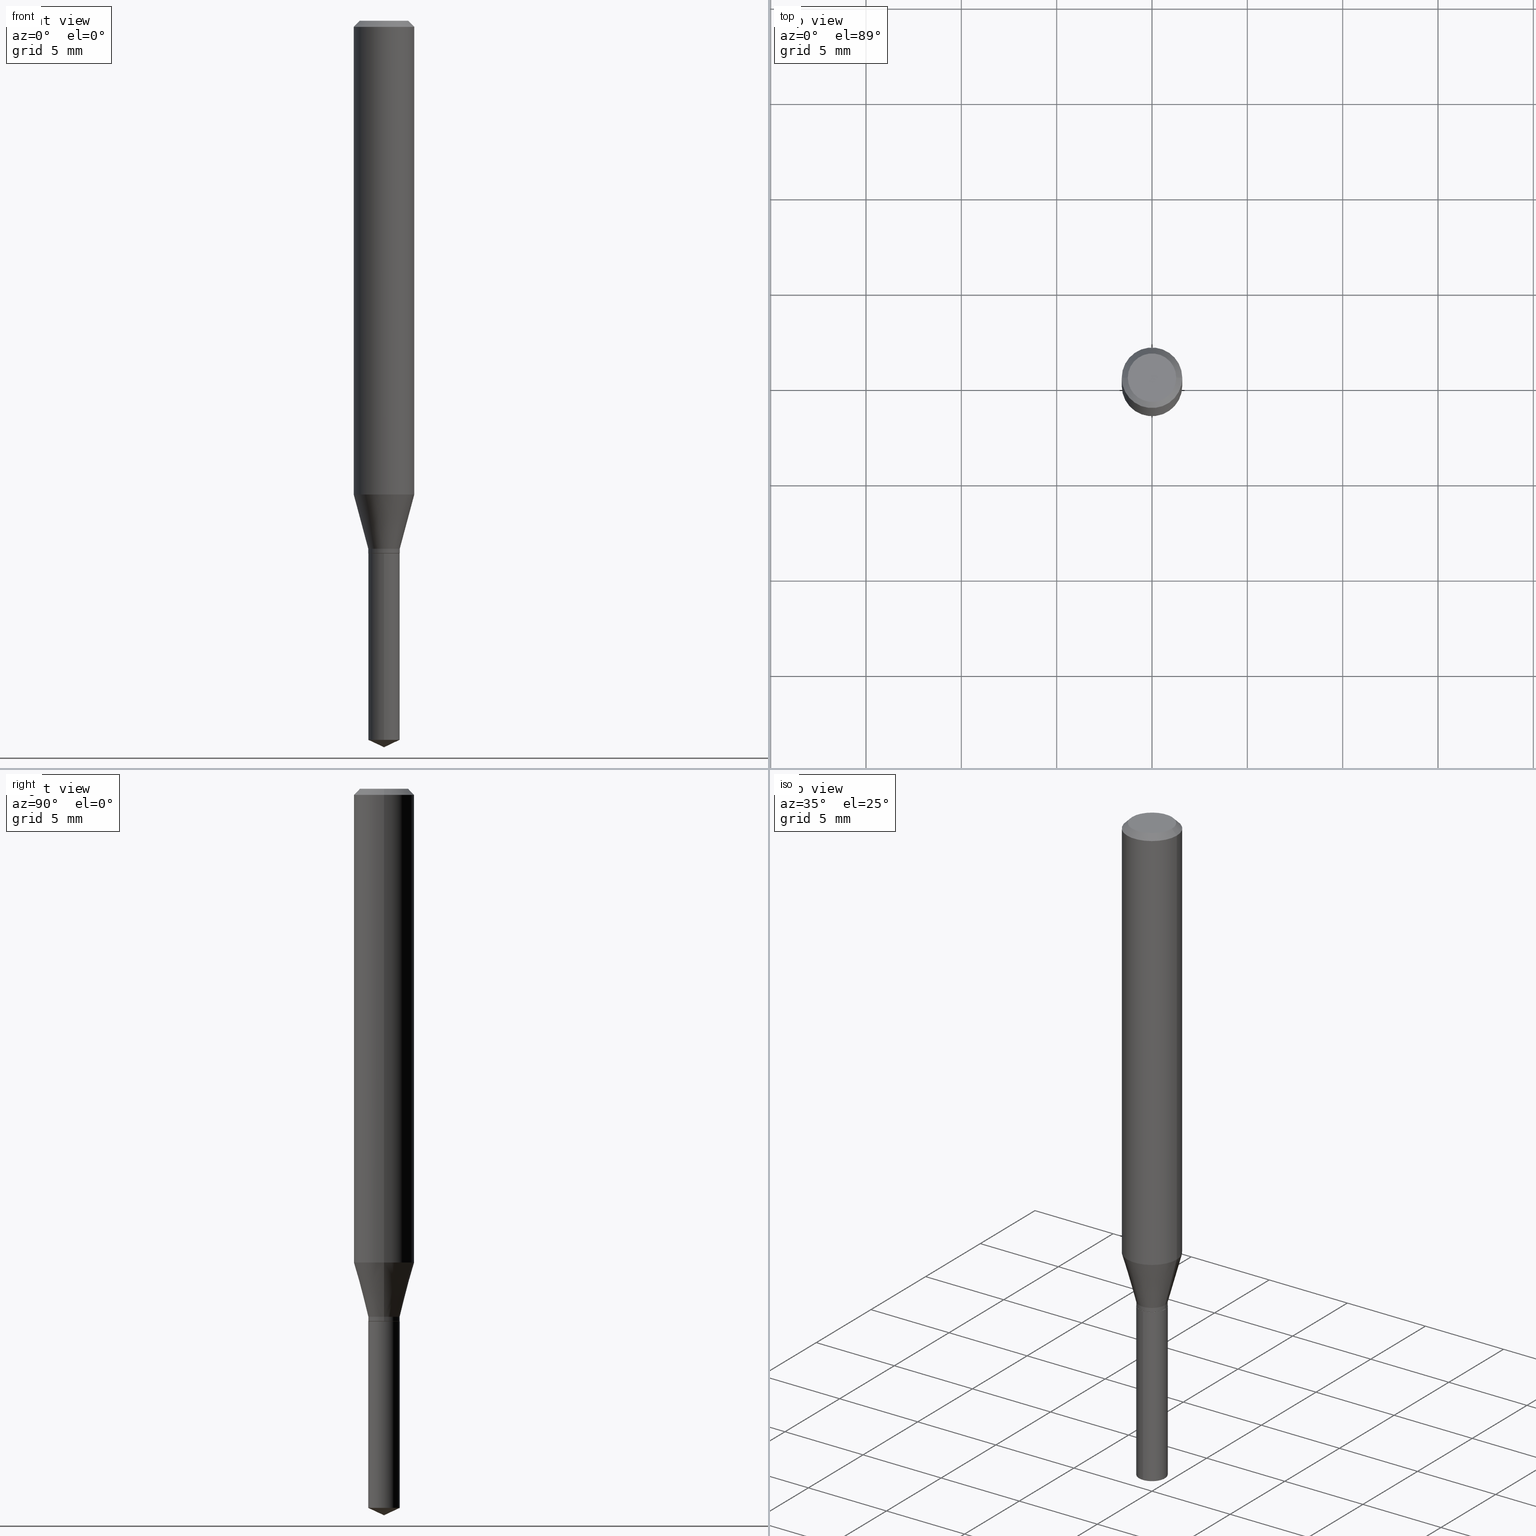
[diagram: canonical four-view strip — front | top / right | iso, engineering-drawing reading convention]
A machine part, canonical four-view strip (front | top / right | iso — engineering-drawing reading convention). The complete STEP part file that produces these views, byte-faithful:
ISO-10303-21;
HEADER;
FILE_DESCRIPTION (( 'STEP AP203' ),
    '1' );
FILE_NAME ('07176.STEP',
    '2024-04-23T19:53:37',
    ( '' ),
    ( '' ),
    'SwSTEP 2.0',
    'SolidWorks 2023',
    '' );
FILE_SCHEMA (( 'CONFIG_CONTROL_DESIGN' ));
ENDSEC;

DATA;
#1 = DIRECTION ( 'NONE',  ( -2.445399690415121530E-29, 3.491580316559632610E-15, 1.000000000000000000 ) ) ;
#2 = CARTESIAN_POINT ( 'NONE',  ( 0.03250000000000000111, -4.033359242631601195E-15, -1.090200000000000058 ) ) ;
#3 = CARTESIAN_POINT ( 'NONE',  ( 2.690015686803650369E-29, -3.840629472727460101E-15, -1.100000000000000089 ) ) ;
#4 =( NAMED_UNIT ( * ) SI_UNIT ( $, .STERADIAN. ) SOLID_ANGLE_UNIT ( ) );
#5 = DIRECTION ( 'NONE',  ( 1.000000000000000000, -6.982962677686273021E-15, 0.000000000000000000 ) ) ;
#6 = CIRCLE ( 'NONE', #360, 0.03250000000000000111 ) ;
#7 = DIRECTION ( 'NONE',  ( 6.982962677686265922E-15, 1.000000000000000000, -3.491580316559632610E-15 ) ) ;
#8 = AXIS2_PLACEMENT_3D ( 'NONE', #13, #122, #273 ) ;
#9 = CIRCLE ( 'NONE', #29, 0.03250000000000000111 ) ;
#10 = CYLINDRICAL_SURFACE ( 'NONE', #246, 0.03250000000000000111 ) ;
#11 = CARTESIAN_POINT ( 'NONE',  ( 3.893286209682126177E-47, -5.558580879666067980E-33, -1.592040838891559689E-18 ) ) ;
#12 = EDGE_CURVE ( 'NONE', #337, #411, #441, .T. ) ;
#13 = CARTESIAN_POINT ( 'NONE',  ( 2.666050092503035832E-29, -3.806412955606797054E-15, -1.090200000000000058 ) ) ;
#14 = CARTESIAN_POINT ( 'NONE',  ( 2.666050092503035832E-29, -3.806412955606797054E-15, -1.090200000000000058 ) ) ;
#15 = MANIFOLD_SOLID_BREP ( 'Body-Move/Copy2[2]', #366 ) ;
#16 = FACE_OUTER_BOUND ( 'NONE', #110, .T. ) ;
#17 = DIRECTION ( 'NONE',  ( -2.445468806185136597E-29, 3.491481338843145583E-15, 1.000000000000000000 ) ) ;
#18 = LOCAL_TIME ( 15, 53, 37.00000000000000000, #465 ) ;
#19 = ADVANCED_FACE ( 'NONE', ( #16 ), #81, .F. ) ;
#20 = DIRECTION ( 'NONE',  ( 1.000000000000000000, -6.982962677686273810E-15, 0.000000000000000000 ) ) ;
#21 = CYLINDRICAL_SURFACE ( 'NONE', #172, 0.03250000000000000111 ) ;
#22 = EDGE_CURVE ( 'NONE', #411, #341, #384, .T. ) ;
#23 = MANIFOLD_SOLID_BREP ( 'Body-Move/Copy2[1]', #452 ) ;
#24 = VECTOR ( 'NONE', #473, 39.37007874015748143 ) ;
#25 = ORIENTED_EDGE ( 'NONE', *, *, #289, .F. ) ;
#26 = EDGE_CURVE ( 'NONE', #368, #252, #425, .T. ) ;
#27 = ORIENTED_EDGE ( 'NONE', *, *, #415, .F. ) ;
#28 = ORIENTED_EDGE ( 'NONE', *, *, #262, .F. ) ;
#29 = AXIS2_PLACEMENT_3D ( 'NONE', #334, #486, #339 ) ;
#30 = DIRECTION ( 'NONE',  ( -2.445468806185136597E-29, 3.491481338843145583E-15, 1.000000000000000000 ) ) ;
#31 = ORIENTED_EDGE ( 'NONE', *, *, #326, .T. ) ;
#32 = ORIENTED_EDGE ( 'NONE', *, *, #55, .T. ) ;
#33 = DIRECTION ( 'NONE',  ( -2.445399690415121810E-29, 3.491580316559632610E-15, 1.000000000000000000 ) ) ;
#34 = EDGE_LOOP ( 'NONE', ( #444, #174, #193, #485 ) ) ;
#35 = CARTESIAN_POINT ( 'NONE',  ( 2.392251677512803216E-29, -3.415501383099560055E-15, -0.9782384757729334357 ) ) ;
#36 = EDGE_CURVE ( 'NONE', #148, #275, #131, .T. ) ;
#37 = APPROVAL_ROLE ( '' ) ;
#38 = ORIENTED_EDGE ( 'NONE', *, *, #283, .T. ) ;
#39 = CARTESIAN_POINT ( 'NONE',  ( 0.06250000000000012490, -3.851936550454952513E-15, -0.9782384757729334357 ) ) ;
#40 = FACE_OUTER_BOUND ( 'NONE', #293, .T. ) ;
#41 = FACE_OUTER_BOUND ( 'NONE', #214, .T. ) ;
#42 = COORDINATED_UNIVERSAL_TIME_OFFSET ( 5, 0, .BEHIND. ) ;
#43 = CARTESIAN_POINT ( 'NONE',  ( 0.04999999999999999584, -4.077247707424184705E-16, -1.592040838888913461E-18 ) ) ;
#44 = DIRECTION ( 'NONE',  ( 1.000000000000000000, -6.982962677686273021E-15, 0.000000000000000000 ) ) ;
#45 = APPROVAL ( #475, 'UNSPECIFIED' ) ;
#46 = CARTESIAN_POINT ( 'NONE',  ( -9.260740279983036507E-28, 1.322265303911854087E-13, 37.87007874015748143 ) ) ;
#47 = AXIS2_PLACEMENT_3D ( 'NONE', #355, #321, #316 ) ;
#48 = CARTESIAN_POINT ( 'NONE',  ( -0.03250000000000000111, 2.309263891220325683E-16, -1.598653904332844407E-30 ) ) ;
#49 = COORDINATED_UNIVERSAL_TIME_OFFSET ( 5, 0, .BEHIND. ) ;
#50 = DIRECTION ( 'NONE',  ( -2.445399690415121530E-29, 3.491580316559632610E-15, 1.000000000000000000 ) ) ;
#51 = CARTESIAN_POINT ( 'NONE',  ( 0.03250000000000000111, -4.033359242631601195E-15, -1.090200000000000058 ) ) ;
#52 = DIRECTION ( 'NONE',  ( 6.439704144417049286E-15, 0.9063077870366550437, 0.4226182617406886721 ) ) ;
#53 = CARTESIAN_POINT ( 'NONE',  ( -0.03250000000000000111, -3.591721954710385060E-15, -1.099499999999999922 ) ) ;
#54 = PRODUCT_DEFINITION_SHAPE ( 'NONE', 'NONE',  #127 ) ;
#55 = EDGE_CURVE ( 'NONE', #337, #305, #428, .T. ) ;
#56 = CARTESIAN_POINT ( 'NONE',  ( 3.056836007731442729E-31, -4.364351673553962300E-17, -0.01250000000000008916 ) ) ;
#57 = CIRCLE ( 'NONE', #47, 0.03250000000000000111 ) ;
#58 = DIRECTION ( 'NONE',  ( 1.000000000000000000, -6.982962677686265922E-15, 4.876176775795935793E-29 ) ) ;
#59 = COORDINATED_UNIVERSAL_TIME_OFFSET ( 5, 0, .BEHIND. ) ;
#60 = CONICAL_SURFACE ( 'NONE', #367, 0.03199999999999999373, 0.7853981633974184140 ) ;
#61 = CARTESIAN_POINT ( 'NONE',  ( 0.000000000000000000, 0.000000000000000000, 0.000000000000000000 ) ) ;
#62 =( CONVERSION_BASED_UNIT ( 'INCH', #234 ) LENGTH_UNIT ( ) NAMED_UNIT ( #327 ) );
#63 = EDGE_LOOP ( 'NONE', ( #106, #27, #67, #294 ) ) ;
#64 = ADVANCED_FACE ( 'NONE', ( #40 ), #205, .T. ) ;
#65 = VERTEX_POINT ( 'NONE', #196 ) ;
#66 = VECTOR ( 'NONE', #474, 39.37007874015748854 ) ;
#67 = ORIENTED_EDGE ( 'NONE', *, *, #26, .T. ) ;
#68 = AXIS2_PLACEMENT_3D ( 'NONE', #383, #1, #123 ) ;
#69 = FACE_OUTER_BOUND ( 'NONE', #178, .T. ) ;
#70 = DATE_AND_TIME ( #349, #256 ) ;
#71 = EDGE_CURVE ( 'NONE', #346, #103, #159, .T. ) ;
#72 = ORIENTED_EDGE ( 'NONE', *, *, #406, .T. ) ;
#73 = CARTESIAN_POINT ( 'NONE',  ( 0.03250000000000000111, -4.065830019082841950E-15, -1.099499999999999922 ) ) ;
#74 = DATE_AND_TIME ( #418, #18 ) ;
#75 = ORIENTED_EDGE ( 'NONE', *, *, #12, .T. ) ;
#76 = DIRECTION ( 'NONE',  ( -2.445468806185136597E-29, 3.491481338843145583E-15, 1.000000000000000000 ) ) ;
#77 = MECHANICAL_CONTEXT ( 'NONE', #372, 'mechanical' ) ;
#78 = CC_DESIGN_APPROVAL ( #45, ( #472 ) ) ;
#79 = EDGE_LOOP ( 'NONE', ( #95, #38, #142, #436 ) ) ;
#80 = DIRECTION ( 'NONE',  ( -2.445468806185136597E-29, 3.491481338843145583E-15, 1.000000000000000000 ) ) ;
#81 = PLANE ( 'NONE',  #175 ) ;
#82 = CARTESIAN_POINT ( 'NONE',  ( 0.000000000000000000, 0.000000000000000000, 0.000000000000000000 ) ) ;
#83 = CC_DESIGN_DATE_AND_TIME_ASSIGNMENT ( #74, #114, ( #127 ) ) ;
#84 = PERSON_AND_ORGANIZATION_ROLE ( 'design_supplier' ) ;
#85 = DIRECTION ( 'NONE',  ( 1.000000000000000000, -6.982962677686273810E-15, 0.000000000000000000 ) ) ;
#86 =( LENGTH_UNIT ( ) NAMED_UNIT ( * ) SI_UNIT ( $, .METRE. ) );
#87 = DATE_TIME_ROLE ( 'classification_date' ) ;
#88 = DIRECTION ( 'NONE',  ( -2.445399690415121530E-29, 3.491580316559632610E-15, 1.000000000000000000 ) ) ;
#89 = CC_DESIGN_APPROVAL ( #218, ( #127 ) ) ;
#90 = DIRECTION ( 'NONE',  ( 1.000000000000000000, -6.982962677686266711E-15, 0.000000000000000000 ) ) ;
#91 = CONICAL_SURFACE ( 'NONE', #442, 0.03199999999999999373, 0.7853981633974184140 ) ;
#92 = CARTESIAN_POINT ( 'NONE',  ( 2.309263891220688559E-16, 0.03249999999999481776, -1.484845001109962981 ) ) ;
#93 = DIRECTION ( 'NONE',  ( 1.000000000000000000, -6.982962677686273810E-15, 0.000000000000000000 ) ) ;
#94 = EDGE_CURVE ( 'NONE', #411, #337, #489, .T. ) ;
#95 = ORIENTED_EDGE ( 'NONE', *, *, #326, .F. ) ;
#96 = DIRECTION ( 'NONE',  ( -6.982962677686265922E-15, -1.000000000000000000, 4.202843067175789324E-15 ) ) ;
#97 = CONICAL_SURFACE ( 'NONE', #397, 0.03250000000000000111, 0.2617993877991499074 ) ;
#98 = CC_DESIGN_DATE_AND_TIME_ASSIGNMENT ( #387, #87, ( #472 ) ) ;
#99 = EDGE_CURVE ( 'NONE', #333, #302, #434, .T. ) ;
#100 = VERTEX_POINT ( 'NONE', #2 ) ;
#101 = ORIENTED_EDGE ( 'NONE', *, *, #71, .T. ) ;
#102 = ORIENTED_EDGE ( 'NONE', *, *, #36, .F. ) ;
#103 = VERTEX_POINT ( 'NONE', #92 ) ;
#104 = AXIS2_PLACEMENT_3D ( 'NONE', #435, #323, #90 ) ;
#105 = EDGE_CURVE ( 'NONE', #100, #483, #217, .T. ) ;
#106 = ORIENTED_EDGE ( 'NONE', *, *, #362, .F. ) ;
#107 = CONICAL_SURFACE ( 'NONE', #288, 0.06250000000000000000, 0.7853981633974449483 ) ;
#108 = FACE_OUTER_BOUND ( 'NONE', #222, .T. ) ;
#109 = APPLICATION_PROTOCOL_DEFINITION ( 'international standard', 'config_control_design', 1994, #319 ) ;
#110 = EDGE_LOOP ( 'NONE', ( #482, #445 ) ) ;
#111 = DIRECTION ( 'NONE',  ( -2.445468806185136877E-29, 3.491481338843145188E-15, 1.000000000000000000 ) ) ;
#112 = ORIENTED_EDGE ( 'NONE', *, *, #71, .F. ) ;
#113 = CARTESIAN_POINT ( 'NONE',  ( 2.690015686803650369E-29, -3.840629472727460101E-15, -1.100000000000000089 ) ) ;
#114 = DATE_TIME_ROLE ( 'creation_date' ) ;
#115 = AXIS2_PLACEMENT_3D ( 'NONE', #242, #202, #169 ) ;
#116 = DESIGN_CONTEXT ( 'detailed design', #319, 'design' ) ;
#117 = CARTESIAN_POINT ( 'NONE',  ( 2.690015686803650369E-29, -3.840629472727460101E-15, -1.100000000000000089 ) ) ;
#118 = DIRECTION ( 'NONE',  ( -0.2588190451025211836, 5.211531920934547886E-15, 0.9659258262890679791 ) ) ;
#119 = CIRCLE ( 'NONE', #478, 0.06250000000000012490 ) ;
#120 = EDGE_CURVE ( 'NONE', #416, #275, #405, .T. ) ;
#121 =( NAMED_UNIT ( * ) PLANE_ANGLE_UNIT ( ) SI_UNIT ( $, .RADIAN. ) );
#122 = DIRECTION ( 'NONE',  ( -2.445468806185136597E-29, 3.491481338843145583E-15, 1.000000000000000000 ) ) ;
#123 = DIRECTION ( 'NONE',  ( -6.982962677686265922E-15, -1.000000000000000000, 0.000000000000000000 ) ) ;
#124 = CALENDAR_DATE ( 2024, 23, 4 ) ;
#125 = CARTESIAN_POINT ( 'NONE',  ( 0.000000000000000000, 0.000000000000000000, 0.000000000000000000 ) ) ;
#126 = CARTESIAN_POINT ( 'NONE',  ( 0.06250000000000000000, -4.724246415962603826E-16, -0.01250000000000008916 ) ) ;
#127 = PRODUCT_DEFINITION ( 'UNKNOWN', '', #215, #116 ) ;
#128 = DIRECTION ( 'NONE',  ( 0.7071067811865263675, -2.468850131082035391E-15, 0.7071067811865686670 ) ) ;
#129 = DIRECTION ( 'NONE',  ( -2.445399690415121530E-29, 3.491580316559632610E-15, 1.000000000000000000 ) ) ;
#130 = PRODUCT ( '07176', '07176', '', ( #77 ) ) ;
#131 = LINE ( 'NONE', #431, #24 ) ;
#132 = FACE_OUTER_BOUND ( 'NONE', #144, .T. ) ;
#133 = DATE_AND_TIME ( #392, #404 ) ;
#134 = CARTESIAN_POINT ( 'NONE',  ( -0.03199999999999999373, -3.610606570110116639E-15, -1.100000000000000089 ) ) ;
#135 = CONICAL_SURFACE ( 'NONE', #115, 0.06250000000000000000, 0.7853981633974449483 ) ;
#136 = CC_DESIGN_PERSON_AND_ORGANIZATION_ASSIGNMENT ( #370, #353, ( #472 ) ) ;
#137 = AXIS2_PLACEMENT_3D ( 'NONE', #46, #88, #468 ) ;
#138 = CIRCLE ( 'NONE', #413, 0.04999999999999999584 ) ;
#139 = EDGE_CURVE ( 'NONE', #305, #100, #466, .T. ) ;
#140 = ORIENTED_EDGE ( 'NONE', *, *, #173, .T. ) ;
#141 = ORIENTED_EDGE ( 'NONE', *, *, #423, .T. ) ;
#142 = ORIENTED_EDGE ( 'NONE', *, *, #99, .T. ) ;
#143 = VERTEX_POINT ( 'NONE', #43 ) ;
#144 = EDGE_LOOP ( 'NONE', ( #419, #229, #25, #407 ) ) ;
#145 = CARTESIAN_POINT ( 'NONE',  ( 0.06250000000000000000, -4.800786840909313294E-16, -0.01250000000000008916 ) ) ;
#146 = ADVANCED_FACE ( 'NONE', ( #199 ), #399, .T. ) ;
#147 = VECTOR ( 'NONE', #358, 39.37007874015748143 ) ;
#148 = VERTEX_POINT ( 'NONE', #233 ) ;
#149 = AXIS2_PLACEMENT_3D ( 'NONE', #194, #80, #271 ) ;
#150 = LINE ( 'NONE', #303, #311 ) ;
#151 = ORIENTED_EDGE ( 'NONE', *, *, #226, .F. ) ;
#152 = CARTESIAN_POINT ( 'NONE',  ( -2.269462870247767285E-16, -0.03250000000000383832, -1.099999999999999867 ) ) ;
#153 = ADVANCED_FACE ( 'NONE', ( #351 ), #10, .T. ) ;
#154 = DIRECTION ( 'NONE',  ( -2.445468806185136597E-29, 3.491481338843145583E-15, 1.000000000000000000 ) ) ;
#155 = DIRECTION ( 'NONE',  ( -2.445468806185136597E-29, 3.491481338843145583E-15, 1.000000000000000000 ) ) ;
#156 = DIRECTION ( 'NONE',  ( -6.982962677686265922E-15, -1.000000000000000000, 4.202843067175789324E-15 ) ) ;
#157 = CIRCLE ( 'NONE', #287, 0.03250000000000000111 ) ;
#158 = DIRECTION ( 'NONE',  ( -1.000000000000000000, 6.982962677686266711E-15, 0.000000000000000000 ) ) ;
#159 = LINE ( 'NONE', #238, #412 ) ;
#160 = CYLINDRICAL_SURFACE ( 'NONE', #286, 0.06250000000000005551 ) ;
#161 = ADVANCED_FACE ( 'NONE', ( #322 ), #284, .F. ) ;
#162 = EDGE_LOOP ( 'NONE', ( #480, #212, #201, #102 ) ) ;
#163 = LINE ( 'NONE', #126, #147 ) ;
#164 = APPROVAL_DATE_TIME ( #133, #45 ) ;
#165 = CARTESIAN_POINT ( 'NONE',  ( -0.06250000000000000000, 3.927916506198520587E-16, -0.01250000000000008916 ) ) ;
#166 = DIRECTION ( 'NONE',  ( 1.000000000000000000, -6.982962677686267499E-15, 4.876176775795936353E-29 ) ) ;
#167 = DIRECTION ( 'NONE',  ( 1.000000000000000000, -6.982962677686265922E-15, 4.876176775795935232E-29 ) ) ;
#168 = PERSON_AND_ORGANIZATION ( #192, #297 ) ;
#169 = DIRECTION ( 'NONE',  ( -1.000000000000000000, 6.982962677686266711E-15, 0.000000000000000000 ) ) ;
#170 = FACE_OUTER_BOUND ( 'NONE', #79, .T. ) ;
#171 = CC_DESIGN_PERSON_AND_ORGANIZATION_ASSIGNMENT ( #459, #185, ( #127 ) ) ;
#172 = AXIS2_PLACEMENT_3D ( 'NONE', #471, #129, #96 ) ;
#173 = EDGE_CURVE ( 'NONE', #275, #416, #157, .T. ) ;
#174 = ORIENTED_EDGE ( 'NONE', *, *, #299, .T. ) ;
#175 = AXIS2_PLACEMENT_3D ( 'NONE', #320, #470, #393 ) ;
#176 = AXIS2_PLACEMENT_3D ( 'NONE', #35, #488, #181 ) ;
#177 = ORIENTED_EDGE ( 'NONE', *, *, #139, .T. ) ;
#178 = EDGE_LOOP ( 'NONE', ( #490, #291, #270, #487 ) ) ;
#179 = ORIENTED_EDGE ( 'NONE', *, *, #292, .F. ) ;
#180 = ADVANCED_FACE ( 'NONE', ( #264 ), #344, .T. ) ;
#181 = DIRECTION ( 'NONE',  ( 1.000000000000000000, -6.982962677686264344E-15, 0.000000000000000000 ) ) ;
#182 = COORDINATED_UNIVERSAL_TIME_OFFSET ( 5, 0, .BEHIND. ) ;
#183 = ORIENTED_EDGE ( 'NONE', *, *, #283, .F. ) ;
#184 = DIRECTION ( 'NONE',  ( -6.328713451373394622E-15, -0.9063077870366521571, 0.4226182617406949449 ) ) ;
#185 = PERSON_AND_ORGANIZATION_ROLE ( 'creator' ) ;
#186 = ORIENTED_EDGE ( 'NONE', *, *, #479, .F. ) ;
#187 = LINE ( 'NONE', #48, #251 ) ;
#188 = ADVANCED_FACE ( 'NONE', ( #313 ), #91, .T. ) ;
#189 = PERSON_AND_ORGANIZATION ( #192, #297 ) ;
#190 = DIRECTION ( 'NONE',  ( 1.000000000000000000, -6.982962677686273021E-15, 0.000000000000000000 ) ) ;
#191 = CARTESIAN_POINT ( 'NONE',  ( 3.668099535622682155E-29, -5.237370474839448718E-15, -1.500000000000000222 ) ) ;
#192 = PERSON ( 'UNSPECIFIED', 'UNSPECIFIED', 'UNSPECIFIED', ('UNSPECIFIED'), ('UNSPECIFIED'), ('UNSPECIFIED') ) ;
#193 = ORIENTED_EDGE ( 'NONE', *, *, #36, .T. ) ;
#194 = CARTESIAN_POINT ( 'NONE',  ( 2.688792952400557567E-29, -3.838883732058038598E-15, -1.099499999999999922 ) ) ;
#195 = AXIS2_PLACEMENT_3D ( 'NONE', #357, #17, #166 ) ;
#196 = CARTESIAN_POINT ( 'NONE',  ( -0.06250000000000012490, -2.971412173249496256E-15, -0.9782384757729334357 ) ) ;
#197 = FACE_OUTER_BOUND ( 'NONE', #162, .T. ) ;
#198 = ADVANCED_FACE ( 'NONE', ( #108 ), #300, .T. ) ;
#199 = FACE_OUTER_BOUND ( 'NONE', #371, .T. ) ;
#200 = CARTESIAN_POINT ( 'NONE',  ( 2.309263891220689052E-16, 0.03249999999999615696, -1.100000000000000089 ) ) ;
#201 = ORIENTED_EDGE ( 'NONE', *, *, #173, .F. ) ;
#202 = DIRECTION ( 'NONE',  ( 2.445468806185136597E-29, -3.491481338843145583E-15, -1.000000000000000000 ) ) ;
#203 = FACE_OUTER_BOUND ( 'NONE', #224, .T. ) ;
#204 = VECTOR ( 'NONE', #343, 39.37007874015748143 ) ;
#205 = CONICAL_SURFACE ( 'NONE', #137, 84.42940631927581308, 1.134464013796322668 ) ;
#206 = CARTESIAN_POINT ( 'NONE',  ( 2.690015686803650369E-29, -3.840629472727460101E-15, -1.100000000000000089 ) ) ;
#207 = EDGE_CURVE ( 'NONE', #483, #65, #422, .T. ) ;
#208 = DIRECTION ( 'NONE',  ( 1.000000000000000000, -6.982962677686265922E-15, 4.875957971899673662E-29 ) ) ;
#209 = CC_DESIGN_APPROVAL ( #484, ( #215 ) ) ;
#210 = CC_DESIGN_PERSON_AND_ORGANIZATION_ASSIGNMENT ( #189, #301, ( #130 ) ) ;
#211 = AXIS2_PLACEMENT_3D ( 'NONE', #312, #356, #5 ) ;
#212 = ORIENTED_EDGE ( 'NONE', *, *, #253, .T. ) ;
#213 = ORIENTED_EDGE ( 'NONE', *, *, #430, .T. ) ;
#214 = EDGE_LOOP ( 'NONE', ( #75, #365, #332, #410 ) ) ;
#215 = PRODUCT_DEFINITION_FORMATION_WITH_SPECIFIED_SOURCE ( 'ANY', '', #130, .NOT_KNOWN. ) ;
#216 = APPROVAL_PERSON_ORGANIZATION ( #261, #218, #37 ) ;
#217 = CIRCLE ( 'NONE', #279, 0.03250000000000000111 ) ;
#218 = APPROVAL ( #449, 'UNSPECIFIED' ) ;
#219 = ORIENTED_EDGE ( 'NONE', *, *, #335, .T. ) ;
#220 = CARTESIAN_POINT ( 'NONE',  ( 2.392251677512803216E-29, -3.415501383099560055E-15, -0.9782384757729334357 ) ) ;
#221 = SECURITY_CLASSIFICATION_LEVEL ( 'unclassified' ) ;
#222 = EDGE_LOOP ( 'NONE', ( #179, #101, #28 ) ) ;
#223 = CARTESIAN_POINT ( 'NONE',  ( -0.03250000000000000111, -3.575486566484764683E-15, -1.090200000000000058 ) ) ;
#224 = EDGE_LOOP ( 'NONE', ( #446, #31, #186, #281 ) ) ;
#225 = DIRECTION ( 'NONE',  ( 1.000000000000000000, -6.982962677686265922E-15, 4.875957971899673662E-29 ) ) ;
#226 = EDGE_CURVE ( 'NONE', #341, #305, #401, .T. ) ;
#227 = APPLICATION_PROTOCOL_DEFINITION ( 'international standard', 'config_control_design', 1994, #372 ) ;
#228 = VECTOR ( 'NONE', #307, 39.37007874015748143 ) ;
#229 = ORIENTED_EDGE ( 'NONE', *, *, #207, .T. ) ;
#230 = DIRECTION ( 'NONE',  ( 1.000000000000000000, -6.982962677686265922E-15, 4.876176775795935232E-29 ) ) ;
#231 = DIRECTION ( 'NONE',  ( -0.7071067811865263675, 7.493145998870278430E-15, 0.7071067811865686670 ) ) ;
#232 = CARTESIAN_POINT ( 'NONE',  ( -0.06250000000000000000, -1.285483240067486009E-15, -0.01250000000000008916 ) ) ;
#233 = CARTESIAN_POINT ( 'NONE',  ( -2.269462870247673115E-16, -0.03250000000000519140, -1.484845001109962981 ) ) ;
#234 = LENGTH_MEASURE_WITH_UNIT ( LENGTH_MEASURE( 0.02539999999999999897 ), #86 );
#235 =( GEOMETRIC_REPRESENTATION_CONTEXT ( 3 ) GLOBAL_UNCERTAINTY_ASSIGNED_CONTEXT ( ( #237 ) ) GLOBAL_UNIT_ASSIGNED_CONTEXT ( ( #62, #121, #4 ) ) REPRESENTATION_CONTEXT ( 'NONE', 'WORKASPACE' ) );
#236 = ADVANCED_FACE ( 'NONE', ( #373 ), #379, .F. ) ;
#237 = UNCERTAINTY_MEASURE_WITH_UNIT (LENGTH_MEASURE( 1.000000000000000082E-05 ), #62, 'distance_accuracy_value', 'NONE');
#238 = CARTESIAN_POINT ( 'NONE',  ( 3.668252923656895710E-29, -5.237152723863177100E-15, -1.500000000000000222 ) ) ;
#239 = VECTOR ( 'NONE', #231, 39.37007874015748143 ) ;
#240 = CARTESIAN_POINT ( 'NONE',  ( 3.668099535622682715E-29, -5.237370474839449507E-15, -1.500000000000000222 ) ) ;
#241 = CARTESIAN_POINT ( 'NONE',  ( 0.03250000000000000111, -2.269462870248036484E-16, 1.584757452133678993E-30 ) ) ;
#242 = CARTESIAN_POINT ( 'NONE',  ( 3.056836007731442729E-31, -4.364351673553962300E-17, -0.01250000000000008916 ) ) ;
#243 = DIRECTION ( 'NONE',  ( -2.445468806185136597E-29, 3.491481338843145583E-15, 1.000000000000000000 ) ) ;
#244 = ADVANCED_FACE ( 'NONE', ( #41 ), #60, .T. ) ;
#245 = DIRECTION ( 'NONE',  ( 1.000000000000000000, -6.982962677686267499E-15, 4.876176775795936353E-29 ) ) ;
#246 = AXIS2_PLACEMENT_3D ( 'NONE', #125, #30, #167 ) ;
#247 = AXIS2_PLACEMENT_3D ( 'NONE', #82, #155, #230 ) ;
#248 = ADVANCED_FACE ( 'NONE', ( #69 ), #107, .T. ) ;
#249 = APPROVAL_PERSON_ORGANIZATION ( #340, #484, #455 ) ;
#250 = ORIENTED_EDGE ( 'NONE', *, *, #22, .F. ) ;
#251 = VECTOR ( 'NONE', #402, 39.37007874015748143 ) ;
#252 = VERTEX_POINT ( 'NONE', #232 ) ;
#253 = EDGE_CURVE ( 'NONE', #103, #416, #260, .T. ) ;
#254 = EDGE_LOOP ( 'NONE', ( #141, #219, #295, #457 ) ) ;
#255 = ORIENTED_EDGE ( 'NONE', *, *, #120, .T. ) ;
#256 = LOCAL_TIME ( 15, 53, 37.00000000000000000, #42 ) ;
#257 = CIRCLE ( 'NONE', #176, 0.06250000000000012490 ) ;
#258 = DATE_AND_TIME ( #381, #461 ) ;
#259 = ORIENTED_EDGE ( 'NONE', *, *, #207, .F. ) ;
#260 = LINE ( 'NONE', #467, #331 ) ;
#261 = PERSON_AND_ORGANIZATION ( #192, #297 ) ;
#262 = EDGE_CURVE ( 'NONE', #148, #103, #388, .T. ) ;
#263 = EDGE_LOOP ( 'NONE', ( #140, #255 ) ) ;
#264 = FACE_OUTER_BOUND ( 'NONE', #254, .T. ) ;
#265 = DIRECTION ( 'NONE',  ( 1.000000000000000000, 0.000000000000000000, 0.000000000000000000 ) ) ;
#266 = ORIENTED_EDGE ( 'NONE', *, *, #335, .F. ) ;
#267 = CARTESIAN_POINT ( 'NONE',  ( -9.260740279983036507E-28, 1.322265303911854087E-13, 37.87007874015748143 ) ) ;
#268 = CC_DESIGN_SECURITY_CLASSIFICATION ( #472, ( #215 ) ) ;
#269 = APPROVAL_STATUS ( 'not_yet_approved' ) ;
#270 = ORIENTED_EDGE ( 'NONE', *, *, #479, .T. ) ;
#271 = DIRECTION ( 'NONE',  ( 1.000000000000000000, -6.982962677686273810E-15, 0.000000000000000000 ) ) ;
#272 = PERSON_AND_ORGANIZATION ( #192, #297 ) ;
#273 = DIRECTION ( 'NONE',  ( 1.000000000000000000, -6.982962677686273810E-15, 0.000000000000000000 ) ) ;
#274 = DIRECTION ( 'NONE',  ( -2.445399690415121530E-29, 3.491580316559632610E-15, 1.000000000000000000 ) ) ;
#275 = VERTEX_POINT ( 'NONE', #152 ) ;
#276 = CARTESIAN_POINT ( 'NONE',  ( -0.04999999999999999584, 3.709698922520826725E-16, -1.592040838894077649E-18 ) ) ;
#277 = APPROVAL_PERSON_ORGANIZATION ( #168, #45, #398 ) ;
#278 = CARTESIAN_POINT ( 'NONE',  ( 2.690015686803650369E-29, -3.840629472727460101E-15, -1.100000000000000089 ) ) ;
#279 = AXIS2_PLACEMENT_3D ( 'NONE', #315, #154, #85 ) ;
#280 = FACE_OUTER_BOUND ( 'NONE', #63, .T. ) ;
#281 = ORIENTED_EDGE ( 'NONE', *, *, #99, .F. ) ;
#282 = CARTESIAN_POINT ( 'NONE',  ( 2.666050092503035832E-29, -3.806412955606797054E-15, -1.090200000000000058 ) ) ;
#283 = EDGE_CURVE ( 'NONE', #65, #333, #119, .T. ) ;
#284 = PLANE ( 'NONE',  #463 ) ;
#285 = CYLINDRICAL_SURFACE ( 'NONE', #195, 0.06250000000000005551 ) ;
#286 = AXIS2_PLACEMENT_3D ( 'NONE', #61, #469, #245 ) ;
#287 = AXIS2_PLACEMENT_3D ( 'NONE', #206, #274, #375 ) ;
#288 = AXIS2_PLACEMENT_3D ( 'NONE', #426, #451, #158 ) ;
#289 = EDGE_CURVE ( 'NONE', #333, #65, #257, .T. ) ;
#290 = VECTOR ( 'NONE', #378, 39.37007874015748143 ) ;
#291 = ORIENTED_EDGE ( 'NONE', *, *, #362, .T. ) ;
#292 = EDGE_CURVE ( 'NONE', #346, #148, #417, .T. ) ;
#293 = EDGE_LOOP ( 'NONE', ( #112, #363, #453 ) ) ;
#294 = ORIENTED_EDGE ( 'NONE', *, *, #391, .T. ) ;
#295 = ORIENTED_EDGE ( 'NONE', *, *, #105, .F. ) ;
#296 = CARTESIAN_POINT ( 'NONE',  ( 2.690015686803650369E-29, -3.840629472727460101E-15, -1.100000000000000089 ) ) ;
#297 = ORGANIZATION ( 'UNSPECIFIED', 'UNSPECIFIED', '' ) ;
#298 = AXIS2_PLACEMENT_3D ( 'NONE', #278, #389, #190 ) ;
#299 = EDGE_CURVE ( 'NONE', #103, #148, #9, .T. ) ;
#300 = CONICAL_SURFACE ( 'NONE', #350, 84.42940631927581308, 1.134464013796322668 ) ;
#301 = PERSON_AND_ORGANIZATION_ROLE ( 'design_owner' ) ;
#302 = VERTEX_POINT ( 'NONE', #145 ) ;
#303 = CARTESIAN_POINT ( 'NONE',  ( -0.06250000000000005551, 4.440892098500630106E-16, -3.074334431409318916E-30 ) ) ;
#304 = DIRECTION ( 'NONE',  ( 0.000000000000000000, 0.000000000000000000, 1.000000000000000000 ) ) ;
#305 = VERTEX_POINT ( 'NONE', #73 ) ;
#306 = DIRECTION ( 'NONE',  ( 1.000000000000000000, -6.982962677686264344E-15, 0.000000000000000000 ) ) ;
#307 = DIRECTION ( 'NONE',  ( -2.445468806185136877E-29, 3.491481338843145188E-15, 1.000000000000000000 ) ) ;
#308 = DIRECTION ( 'NONE',  ( -2.445468806185136597E-29, 3.491481338843145583E-15, 1.000000000000000000 ) ) ;
#309 = AXIS2_PLACEMENT_3D ( 'NONE', #11, #437, #208 ) ;
#310 = APPROVAL_DATE_TIME ( #70, #484 ) ;
#311 = VECTOR ( 'NONE', #111, 39.37007874015748143 ) ;
#312 = CARTESIAN_POINT ( 'NONE',  ( 2.690015686803650369E-29, -3.840629472727460101E-15, -1.100000000000000089 ) ) ;
#313 = FACE_OUTER_BOUND ( 'NONE', #447, .T. ) ;
#314 = CC_DESIGN_PERSON_AND_ORGANIZATION_ASSIGNMENT ( #427, #84, ( #215 ) ) ;
#315 = CARTESIAN_POINT ( 'NONE',  ( 2.666050092503035832E-29, -3.806412955606797054E-15, -1.090200000000000058 ) ) ;
#316 = DIRECTION ( 'NONE',  ( 1.000000000000000000, -6.982962677686273810E-15, 0.000000000000000000 ) ) ;
#317 = ORIENTED_EDGE ( 'NONE', *, *, #94, .F. ) ;
#318 = DIRECTION ( 'NONE',  ( -2.445468806185136597E-29, 3.491481338843145583E-15, 1.000000000000000000 ) ) ;
#319 = APPLICATION_CONTEXT ( 'configuration controlled 3d designs of mechanical parts and assemblies' ) ;
#320 = CARTESIAN_POINT ( 'NONE',  ( 1.946643104841063088E-47, -2.779290439833033990E-33, -7.960204194457798443E-19 ) ) ;
#321 = DIRECTION ( 'NONE',  ( -2.445468806185136597E-29, 3.491481338843145583E-15, 1.000000000000000000 ) ) ;
#322 = FACE_OUTER_BOUND ( 'NONE', #421, .T. ) ;
#323 = DIRECTION ( 'NONE',  ( -2.445468806185136597E-29, 3.491481338843145583E-15, 1.000000000000000000 ) ) ;
#324 = CARTESIAN_POINT ( 'NONE',  ( -0.03250000000000000111, -3.591721954710385060E-15, -1.090200000000000058 ) ) ;
#325 = AXIS2_PLACEMENT_3D ( 'NONE', #377, #304, #265 ) ;
#326 = EDGE_CURVE ( 'NONE', #65, #252, #150, .T. ) ;
#327 = DIMENSIONAL_EXPONENTS ( 1.000000000000000000, 0.000000000000000000, 0.000000000000000000, 0.000000000000000000, 0.000000000000000000, 0.000000000000000000, 0.000000000000000000 ) ;
#328 = EDGE_CURVE ( 'NONE', #143, #368, #138, .T. ) ;
#329 = CIRCLE ( 'NONE', #104, 0.06250000000000000000 ) ;
#330 = ORIENTED_EDGE ( 'NONE', *, *, #226, .T. ) ;
#331 = VECTOR ( 'NONE', #33, 39.37007874015748143 ) ;
#332 = ORIENTED_EDGE ( 'NONE', *, *, #423, .F. ) ;
#333 = VERTEX_POINT ( 'NONE', #39 ) ;
#334 = CARTESIAN_POINT ( 'NONE',  ( 3.631115533375760898E-29, -5.184346703529376829E-15, -1.484845001109962981 ) ) ;
#335 = EDGE_CURVE ( 'NONE', #341, #483, #187, .T. ) ;
#336 = PERSON_AND_ORGANIZATION_ROLE ( 'creator' ) ;
#337 = VERTEX_POINT ( 'NONE', #395 ) ;
#338 = LOCAL_TIME ( 15, 53, 37.00000000000000000, #49 ) ;
#339 = DIRECTION ( 'NONE',  ( -6.982962677686265922E-15, -1.000000000000000000, 0.000000000000000000 ) ) ;
#340 = PERSON_AND_ORGANIZATION ( #192, #297 ) ;
#341 = VERTEX_POINT ( 'NONE', #53 ) ;
#342 = DIRECTION ( 'NONE',  ( -2.445468806185136597E-29, 3.491481338843145583E-15, 1.000000000000000000 ) ) ;
#343 = DIRECTION ( 'NONE',  ( -2.445468806185136877E-29, 3.491481338843145188E-15, 1.000000000000000000 ) ) ;
#344 = CYLINDRICAL_SURFACE ( 'NONE', #247, 0.03250000000000000111 ) ;
#345 = ADVANCED_FACE ( 'NONE', ( #203 ), #160, .T. ) ;
#346 = VERTEX_POINT ( 'NONE', #240 ) ;
#347 = DIRECTION ( 'NONE',  ( 2.445399690415121250E-29, -3.491580316559632610E-15, -1.000000000000000000 ) ) ;
#348 = CIRCLE ( 'NONE', #364, 0.06250000000000000000 ) ;
#349 = CALENDAR_DATE ( 2024, 23, 4 ) ;
#350 = AXIS2_PLACEMENT_3D ( 'NONE', #267, #462, #458 ) ;
#351 = FACE_OUTER_BOUND ( 'NONE', #408, .T. ) ;
#352 = CYLINDRICAL_SURFACE ( 'NONE', #386, 0.03250000000000000111 ) ;
#353 = PERSON_AND_ORGANIZATION_ROLE ( 'classification_officer' ) ;
#354 = CARTESIAN_POINT ( 'NONE',  ( 0.03199999999999999373, -4.064084278413421236E-15, -1.100000000000000089 ) ) ;
#355 = CARTESIAN_POINT ( 'NONE',  ( 2.688792952400557567E-29, -3.838883732058038598E-15, -1.099499999999999922 ) ) ;
#356 = DIRECTION ( 'NONE',  ( -2.445468806185136597E-29, 3.491481338843145583E-15, 1.000000000000000000 ) ) ;
#357 = CARTESIAN_POINT ( 'NONE',  ( 0.000000000000000000, 0.000000000000000000, 0.000000000000000000 ) ) ;
#358 = DIRECTION ( 'NONE',  ( 0.7071067811865451302, -7.319954787623248157E-15, -0.7071067811865499042 ) ) ;
#359 = FACE_OUTER_BOUND ( 'NONE', #34, .T. ) ;
#360 = AXIS2_PLACEMENT_3D ( 'NONE', #14, #318, #93 ) ;
#361 = VECTOR ( 'NONE', #118, 39.37007874015748854 ) ;
#362 = EDGE_CURVE ( 'NONE', #143, #302, #163, .T. ) ;
#363 = ORIENTED_EDGE ( 'NONE', *, *, #292, .T. ) ;
#364 = AXIS2_PLACEMENT_3D ( 'NONE', #56, #476, #385 ) ;
#365 = ORIENTED_EDGE ( 'NONE', *, *, #22, .T. ) ;
#366 = CLOSED_SHELL ( 'NONE', ( #244, #248, #345, #477, #180, #153, #146, #456, #443, #19, #161, #188 ) ) ;
#367 = AXIS2_PLACEMENT_3D ( 'NONE', #113, #308, #44 ) ;
#368 = VERTEX_POINT ( 'NONE', #276 ) ;
#369 = DIRECTION ( 'NONE',  ( -2.445468806185136597E-29, 3.491481338843145583E-15, 1.000000000000000000 ) ) ;
#370 = PERSON_AND_ORGANIZATION ( #192, #297 ) ;
#371 = EDGE_LOOP ( 'NONE', ( #259, #213, #72, #183 ) ) ;
#372 = APPLICATION_CONTEXT ( 'configuration controlled 3d designs of mechanical parts and assemblies' ) ;
#373 = FACE_OUTER_BOUND ( 'NONE', #263, .T. ) ;
#374 = ORIENTED_EDGE ( 'NONE', *, *, #430, .F. ) ;
#375 = DIRECTION ( 'NONE',  ( -6.982962677686265922E-15, -1.000000000000000000, 4.202843067175789324E-15 ) ) ;
#376 = AXIS2_PLACEMENT_3D ( 'NONE', #117, #50, #156 ) ;
#377 = CARTESIAN_POINT ( 'NONE',  ( 0.000000000000000000, 0.000000000000000000, 0.000000000000000000 ) ) ;
#378 = DIRECTION ( 'NONE',  ( -0.7071067811865451302, 2.468850131082231817E-15, -0.7071067811865499042 ) ) ;
#379 = PLANE ( 'NONE',  #481 ) ;
#380 = ADVANCED_FACE ( 'NONE', ( #197 ), #352, .T. ) ;
#381 = CALENDAR_DATE ( 2024, 23, 4 ) ;
#382 = CARTESIAN_POINT ( 'NONE',  ( 0.06250000000000005551, -4.364351673553921131E-16, 3.047610484872463023E-30 ) ) ;
#383 = CARTESIAN_POINT ( 'NONE',  ( 3.631115533375760898E-29, -5.184346703529376829E-15, -1.484845001109962981 ) ) ;
#384 = LINE ( 'NONE', #460, #239 ) ;
#385 = DIRECTION ( 'NONE',  ( 1.000000000000000000, -6.982962677686266711E-15, 0.000000000000000000 ) ) ;
#386 = AXIS2_PLACEMENT_3D ( 'NONE', #432, #429, #394 ) ;
#387 = DATE_AND_TIME ( #124, #338 ) ;
#388 = CIRCLE ( 'NONE', #68, 0.03250000000000000111 ) ;
#389 = DIRECTION ( 'NONE',  ( -2.445468806185136597E-29, 3.491481338843145583E-15, 1.000000000000000000 ) ) ;
#390 = LINE ( 'NONE', #51, #66 ) ;
#391 = EDGE_CURVE ( 'NONE', #252, #302, #329, .T. ) ;
#392 = CALENDAR_DATE ( 2024, 23, 4 ) ;
#393 = DIRECTION ( 'NONE',  ( -1.000000000000000000, 6.982962677686265922E-15, -4.876176775795935793E-29 ) ) ;
#394 = DIRECTION ( 'NONE',  ( -6.982962677686265922E-15, -1.000000000000000000, 4.202843067175789324E-15 ) ) ;
#395 = CARTESIAN_POINT ( 'NONE',  ( 0.03199999999999999373, -4.064084278413421236E-15, -1.100000000000000089 ) ) ;
#396 = DIRECTION ( 'NONE',  ( -2.438088387897960049E-29, 3.491481338843145188E-15, 1.000000000000000000 ) ) ;
#397 = AXIS2_PLACEMENT_3D ( 'NONE', #282, #243, #20 ) ;
#398 = APPROVAL_ROLE ( '' ) ;
#399 = CONICAL_SURFACE ( 'NONE', #8, 0.03250000000000000111, 0.2617993877991499074 ) ;
#400 = ADVANCED_BREP_SHAPE_REPRESENTATION ( '07176', ( #23, #15, #325 ), #235 ) ;
#401 = CIRCLE ( 'NONE', #149, 0.03250000000000000111 ) ;
#402 = DIRECTION ( 'NONE',  ( -2.445468806185136877E-29, 3.491481338843145188E-15, 1.000000000000000000 ) ) ;
#403 = CC_DESIGN_PERSON_AND_ORGANIZATION_ASSIGNMENT ( #272, #336, ( #215 ) ) ;
#404 = LOCAL_TIME ( 15, 53, 37.00000000000000000, #59 ) ;
#405 = CIRCLE ( 'NONE', #376, 0.03250000000000000111 ) ;
#406 = EDGE_CURVE ( 'NONE', #100, #333, #390, .T. ) ;
#407 = ORIENTED_EDGE ( 'NONE', *, *, #406, .F. ) ;
#408 = EDGE_LOOP ( 'NONE', ( #266, #330, #177, #374 ) ) ;
#409 = ORIENTED_EDGE ( 'NONE', *, *, #12, .F. ) ;
#410 = ORIENTED_EDGE ( 'NONE', *, *, #55, .F. ) ;
#411 = VERTEX_POINT ( 'NONE', #134 ) ;
#412 = VECTOR ( 'NONE', #52, 39.37007874015748854 ) ;
#413 = AXIS2_PLACEMENT_3D ( 'NONE', #420, #76, #225 ) ;
#414 = APPROVAL_DATE_TIME ( #258, #218 ) ;
#415 = EDGE_CURVE ( 'NONE', #368, #143, #440, .T. ) ;
#416 = VERTEX_POINT ( 'NONE', #200 ) ;
#417 = LINE ( 'NONE', #191, #464 ) ;
#418 = CALENDAR_DATE ( 2024, 23, 4 ) ;
#419 = ORIENTED_EDGE ( 'NONE', *, *, #105, .T. ) ;
#420 = CARTESIAN_POINT ( 'NONE',  ( 3.893286209682126177E-47, -5.558580879666067980E-33, -1.592040838891559689E-18 ) ) ;
#421 = EDGE_LOOP ( 'NONE', ( #409, #317 ) ) ;
#422 = LINE ( 'NONE', #223, #361 ) ;
#423 = EDGE_CURVE ( 'NONE', #305, #341, #57, .T. ) ;
#424 = VECTOR ( 'NONE', #128, 39.37007874015748143 ) ;
#425 = LINE ( 'NONE', #165, #290 ) ;
#426 = CARTESIAN_POINT ( 'NONE',  ( 3.056836007731442729E-31, -4.364351673553962300E-17, -0.01250000000000008916 ) ) ;
#427 = PERSON_AND_ORGANIZATION ( #192, #297 ) ;
#428 = LINE ( 'NONE', #354, #424 ) ;
#429 = DIRECTION ( 'NONE',  ( -2.445399690415121530E-29, 3.491580316559632610E-15, 1.000000000000000000 ) ) ;
#430 = EDGE_CURVE ( 'NONE', #483, #100, #6, .T. ) ;
#431 = CARTESIAN_POINT ( 'NONE',  ( -2.269462870247767285E-16, -0.03250000000000383832, -1.099999999999999867 ) ) ;
#432 = CARTESIAN_POINT ( 'NONE',  ( 2.690015686803650369E-29, -3.840629472727460101E-15, -1.100000000000000089 ) ) ;
#433 = SHAPE_DEFINITION_REPRESENTATION ( #54, #400 ) ;
#434 = LINE ( 'NONE', #382, #204 ) ;
#435 = CARTESIAN_POINT ( 'NONE',  ( 3.056836007731442729E-31, -4.364351673553962300E-17, -0.01250000000000008916 ) ) ;
#436 = ORIENTED_EDGE ( 'NONE', *, *, #391, .F. ) ;
#437 = DIRECTION ( 'NONE',  ( -2.445468806185136597E-29, 3.491481338843145583E-15, 1.000000000000000000 ) ) ;
#438 = CARTESIAN_POINT ( 'NONE',  ( 2.690015686803650369E-29, -3.840629472727460101E-15, -1.100000000000000089 ) ) ;
#439 = ADVANCED_FACE ( 'NONE', ( #359 ), #21, .T. ) ;
#440 = CIRCLE ( 'NONE', #309, 0.04999999999999999584 ) ;
#441 = CIRCLE ( 'NONE', #211, 0.03199999999999999373 ) ;
#442 = AXIS2_PLACEMENT_3D ( 'NONE', #296, #342, #454 ) ;
#443 = ADVANCED_FACE ( 'NONE', ( #280 ), #135, .T. ) ;
#444 = ORIENTED_EDGE ( 'NONE', *, *, #253, .F. ) ;
#445 = ORIENTED_EDGE ( 'NONE', *, *, #328, .T. ) ;
#446 = ORIENTED_EDGE ( 'NONE', *, *, #289, .T. ) ;
#447 = EDGE_LOOP ( 'NONE', ( #250, #450, #32, #151 ) ) ;
#448 = PRODUCT_RELATED_PRODUCT_CATEGORY ( 'detail', '', ( #130 ) ) ;
#449 = APPROVAL_STATUS ( 'not_yet_approved' ) ;
#450 = ORIENTED_EDGE ( 'NONE', *, *, #94, .T. ) ;
#451 = DIRECTION ( 'NONE',  ( 2.445468806185136597E-29, -3.491481338843145583E-15, -1.000000000000000000 ) ) ;
#452 = CLOSED_SHELL ( 'NONE', ( #380, #198, #64, #439, #236 ) ) ;
#453 = ORIENTED_EDGE ( 'NONE', *, *, #299, .F. ) ;
#454 = DIRECTION ( 'NONE',  ( 1.000000000000000000, -6.982962677686273021E-15, 0.000000000000000000 ) ) ;
#455 = APPROVAL_ROLE ( '' ) ;
#456 = ADVANCED_FACE ( 'NONE', ( #170 ), #285, .T. ) ;
#457 = ORIENTED_EDGE ( 'NONE', *, *, #139, .F. ) ;
#458 = DIRECTION ( 'NONE',  ( -6.982962677686267499E-15, -1.000000000000000000, 3.520397390770392339E-15 ) ) ;
#459 = PERSON_AND_ORGANIZATION ( #192, #297 ) ;
#460 = CARTESIAN_POINT ( 'NONE',  ( -0.03199999999999999373, -3.613255797284227840E-15, -1.100000000000000089 ) ) ;
#461 = LOCAL_TIME ( 15, 53, 37.00000000000000000, #182 ) ;
#462 = DIRECTION ( 'NONE',  ( -2.445399690415121530E-29, 3.491580316559632610E-15, 1.000000000000000000 ) ) ;
#463 = AXIS2_PLACEMENT_3D ( 'NONE', #438, #396, #58 ) ;
#464 = VECTOR ( 'NONE', #184, 39.37007874015748143 ) ;
#465 = COORDINATED_UNIVERSAL_TIME_OFFSET ( 5, 0, .BEHIND. ) ;
#466 = LINE ( 'NONE', #241, #228 ) ;
#467 = CARTESIAN_POINT ( 'NONE',  ( 2.309263891220594389E-16, 0.03249999999999615696, -1.100000000000000089 ) ) ;
#468 = DIRECTION ( 'NONE',  ( -6.982962677686267499E-15, -1.000000000000000000, 3.520397390770392339E-15 ) ) ;
#469 = DIRECTION ( 'NONE',  ( -2.445468806185136597E-29, 3.491481338843145583E-15, 1.000000000000000000 ) ) ;
#470 = DIRECTION ( 'NONE',  ( 2.438088387897960049E-29, -3.491481338843145188E-15, -1.000000000000000000 ) ) ;
#471 = CARTESIAN_POINT ( 'NONE',  ( 2.690015686803650369E-29, -3.840629472727460101E-15, -1.100000000000000089 ) ) ;
#472 = SECURITY_CLASSIFICATION ( '', '', #221 ) ;
#473 = DIRECTION ( 'NONE',  ( -2.445399690415121810E-29, 3.491580316559632610E-15, 1.000000000000000000 ) ) ;
#474 = DIRECTION ( 'NONE',  ( 0.2588190451025211836, 1.565188264969622559E-15, 0.9659258262890679791 ) ) ;
#475 = APPROVAL_STATUS ( 'not_yet_approved' ) ;
#476 = DIRECTION ( 'NONE',  ( -2.445468806185136597E-29, 3.491481338843145583E-15, 1.000000000000000000 ) ) ;
#477 = ADVANCED_FACE ( 'NONE', ( #132 ), #97, .T. ) ;
#478 = AXIS2_PLACEMENT_3D ( 'NONE', #220, #369, #306 ) ;
#479 = EDGE_CURVE ( 'NONE', #302, #252, #348, .T. ) ;
#480 = ORIENTED_EDGE ( 'NONE', *, *, #262, .T. ) ;
#481 = AXIS2_PLACEMENT_3D ( 'NONE', #3, #347, #7 ) ;
#482 = ORIENTED_EDGE ( 'NONE', *, *, #415, .T. ) ;
#483 = VERTEX_POINT ( 'NONE', #324 ) ;
#484 = APPROVAL ( #269, 'UNSPECIFIED' ) ;
#485 = ORIENTED_EDGE ( 'NONE', *, *, #120, .F. ) ;
#486 = DIRECTION ( 'NONE',  ( -2.445399690415121530E-29, 3.491580316559632610E-15, 1.000000000000000000 ) ) ;
#487 = ORIENTED_EDGE ( 'NONE', *, *, #26, .F. ) ;
#488 = DIRECTION ( 'NONE',  ( -2.445468806185136597E-29, 3.491481338843145583E-15, 1.000000000000000000 ) ) ;
#489 = CIRCLE ( 'NONE', #298, 0.03199999999999999373 ) ;
#490 = ORIENTED_EDGE ( 'NONE', *, *, #328, .F. ) ;
ENDSEC;
END-ISO-10303-21;
